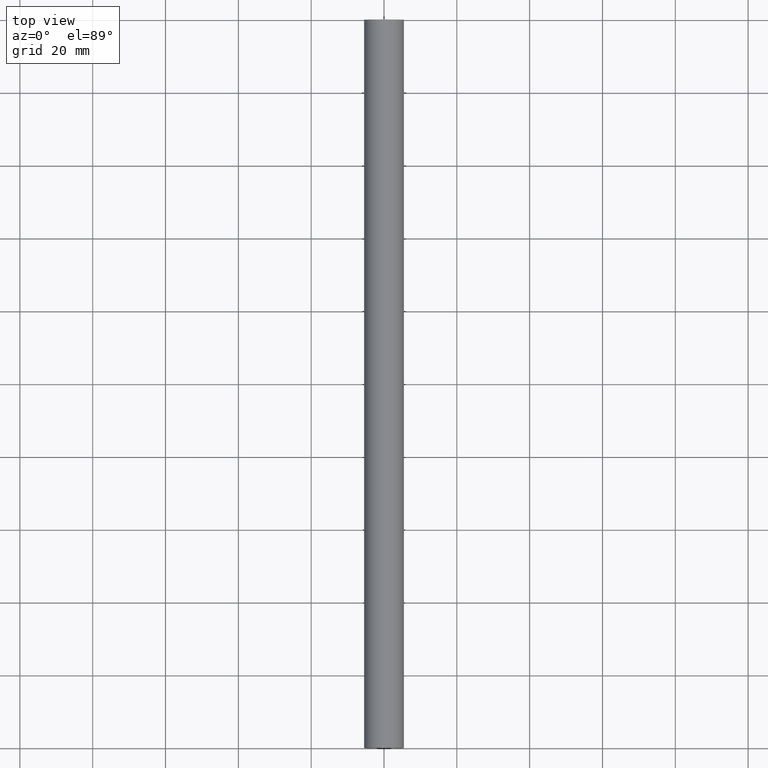
[diagram: clean part render]
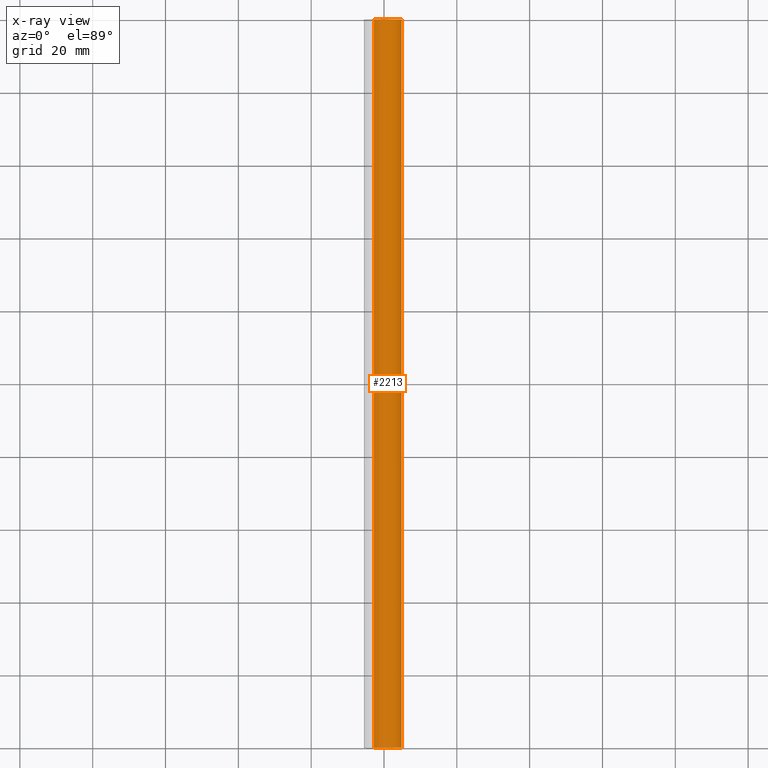
[diagram: x-ray — body ghosted, one internal face saturated and labeled with its STEP entity id]
A machine part, top view, then the same camera in x-ray: the body is ghosted and one INTERNAL B-rep face — a face not visible from any outside direction — is saturated and labeled: STEP entity #2213.
In plain terms, the highlighted face is a freeform B-spline surface patch.
Its self-contained STEP definition (entity closure, byte-faithful):
#1669=CARTESIAN_POINT('',(4.760254915118260,0.0,-5.921253619630440));
#1670=VERTEX_POINT('',#1669);
#1676=CARTESIAN_POINT('',(-2.757941046410570,0.0,-1.646980995164320));
#1677=VERTEX_POINT('',#1676);
#1678=CARTESIAN_POINT('',(4.760254915118260,0.0,-5.921253619630440));
#1679=CARTESIAN_POINT('',(4.809773698767703,0.0,-5.303364320116438));
#1680=CARTESIAN_POINT('',(4.702562235740743,0.0,-4.391157658596011));
#1681=CARTESIAN_POINT('',(4.251870859431919,0.0,-3.322751423153965));
#1682=CARTESIAN_POINT('',(3.735779637582687,0.0,-2.512217826264827));
#1683=CARTESIAN_POINT('',(2.916779884359533,0.0,-1.683420624753830));
#1684=CARTESIAN_POINT('',(1.647400660880820,0.0,-0.976312390091860));
#1685=CARTESIAN_POINT('',(0.132172769352912,0.0,-0.685569055856825));
#1686=CARTESIAN_POINT('',(-1.422064379579253,0.0,-0.901494386677175));
#1687=CARTESIAN_POINT('',(-2.344116451170853,0.0,-1.353915107768694));
#1688=CARTESIAN_POINT('',(-2.757941046410570,0.0,-1.646980995164320));
#1689=B_SPLINE_CURVE_WITH_KNOTS('',3,(#1678,#1679,#1680,#1681,#1682,#1683,#1684,#1685,#1686,#1687,#1688),.UNSPECIFIED.,.F.,.U.,(4,1,1,1,1,1,1,1,4),(0.000000659030817,1.859248521109706,2.704410601578609,3.465060396138925,4.732807030885470,6.169400336249782,7.775160863212134,9.296411749867378,10.817637577076329),.UNSPECIFIED.);
#1690=EDGE_CURVE('',#1670,#1677,#1689,.T.);
#1831=CARTESIAN_POINT('',(4.760254915118260,200.0,-5.921253619630440));
#1832=VERTEX_POINT('',#1831);
#1953=CARTESIAN_POINT('',(-2.757941046410570,200.0,-1.646980995164320));
#1954=VERTEX_POINT('',#1953);
#1968=CARTESIAN_POINT('',(4.760254915118260,200.0,-5.921253619630440));
#1969=CARTESIAN_POINT('',(4.812078204239079,199.999999999999890,-5.275298466012799));
#1970=CARTESIAN_POINT('',(4.664169771268907,200.000000000000910,-4.105593854434599));
#1971=CARTESIAN_POINT('',(3.915721596164852,199.999999999999090,-2.694068485395804));
#1972=CARTESIAN_POINT('',(2.916755338182043,200.000000000000990,-1.683434123518977));
#1973=CARTESIAN_POINT('',(1.647405422381222,200.000000000000910,-0.976309481989197));
#1974=CARTESIAN_POINT('',(0.132171453124442,199.999999999995710,-0.685569878441235));
#1975=CARTESIAN_POINT('',(-1.422064205557952,199.999999999998410,-0.901494280149609));
#1976=CARTESIAN_POINT('',(-2.344116450670351,200.000000000003010,-1.353915106685606));
#1977=CARTESIAN_POINT('',(-2.757941046410570,200.0,-1.646980995164320));
#1978=B_SPLINE_CURVE_WITH_KNOTS('',3,(#1968,#1969,#1970,#1971,#1972,#1973,#1974,#1975,#1976,#1977),.UNSPECIFIED.,.F.,.U.,(4,1,1,1,1,1,1,4),(0.000000659030817,1.943792881658339,3.465060396138925,4.732807030885470,6.169400336249782,7.775160863212134,9.296411749867378,10.817637577076329),.UNSPECIFIED.);
#1979=EDGE_CURVE('',#1832,#1954,#1978,.T.);
#2175=CARTESIAN_POINT('',(-2.757941046410570,200.0,-1.646980995164320));
#2176=CARTESIAN_POINT('',(-2.757941046410570,0.0,-1.646980995164320));
#2177=QUASI_UNIFORM_CURVE('',1,(#2175,#2176),.UNSPECIFIED.,.F.,.U.);
#2178=EDGE_CURVE('',#1954,#1677,#2177,.T.);
#2185=CARTESIAN_POINT('',(-2.872513363682492,205.0,-1.730622769036789));
#2186=CARTESIAN_POINT('',(-2.872513363682492,-5.125000000000000,-1.730622769036789));
#2187=CARTESIAN_POINT('',(-0.299620101970777,205.000000000000090,0.206911959510739));
#2188=CARTESIAN_POINT('',(-0.299620101970777,-5.125000000000000,0.206911959510739));
#2189=CARTESIAN_POINT('',(2.460653595993514,205.0,-1.452819847985829));
#2190=CARTESIAN_POINT('',(2.460653595993514,-5.125000000000000,-1.452819847985829));
#2191=CARTESIAN_POINT('',(5.220927293957804,205.000000000000090,-3.112551655482399));
#2192=CARTESIAN_POINT('',(5.220927293957804,-5.125000000000000,-3.112551655482399));
#2193=CARTESIAN_POINT('',(4.716067486025978,205.0,-6.293579340810575));
#2194=CARTESIAN_POINT('',(4.716067486025978,-5.125000000000000,-6.293579340810575));
#2202=(BOUNDED_SURFACE()B_SPLINE_SURFACE(1,2,((#2185,#2187,#2189,#2191,#2193),(#2186,#2188,#2190,#2192,#2194)),.UNSPECIFIED.,.F.,.F.,.U.)B_SPLINE_SURFACE_WITH_KNOTS((2,2),(3,2,3),(0.0,210.125000000000110),(0.0,5.839571007284324,11.679142014568651),.UNSPECIFIED.)GEOMETRIC_REPRESENTATION_ITEM()RATIONAL_B_SPLINE_SURFACE(((1.0,0.829037572555042,1.0,0.829037572555042,1.0),(1.0,0.829037572555042,1.0,0.829037572555042,1.0)))REPRESENTATION_ITEM('')SURFACE());
#2203=ORIENTED_EDGE('',*,*,#1690,.F.);
#2204=CARTESIAN_POINT('',(4.760254915118260,200.0,-5.921253619630440));
#2205=CARTESIAN_POINT('',(4.760254915118260,0.0,-5.921253619630440));
#2206=QUASI_UNIFORM_CURVE('',1,(#2204,#2205),.UNSPECIFIED.,.F.,.U.);
#2207=EDGE_CURVE('',#1832,#1670,#2206,.T.);
#2208=ORIENTED_EDGE('',*,*,#2207,.F.);
#2209=ORIENTED_EDGE('',*,*,#1979,.T.);
#2210=ORIENTED_EDGE('',*,*,#2178,.T.);
#2211=EDGE_LOOP('',(#2203,#2208,#2209,#2210));
#2212=FACE_OUTER_BOUND('',#2211,.T.);
#2213=ADVANCED_FACE('',(#2212),#2202,.T.);